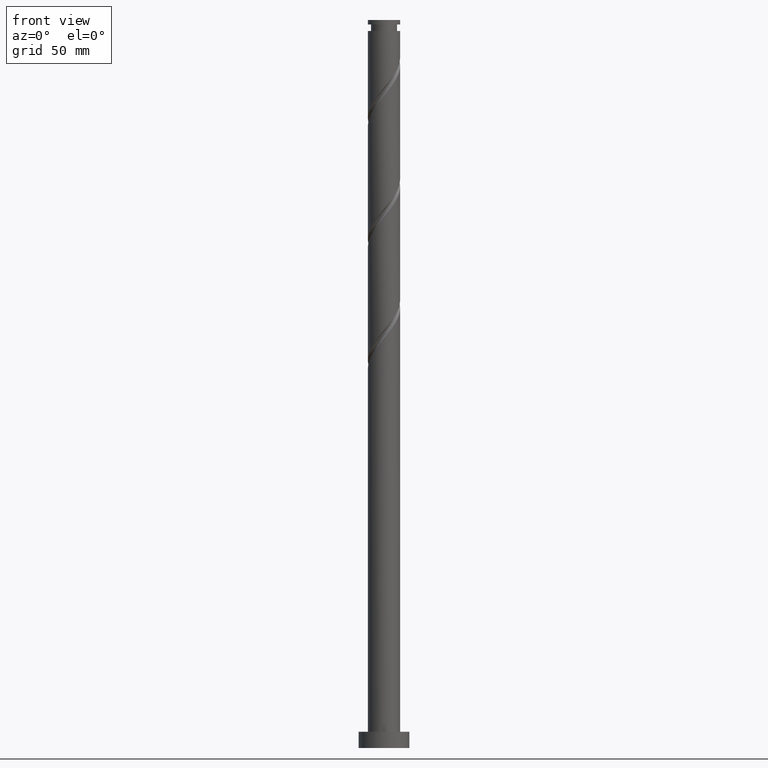
[diagram: clean part render]
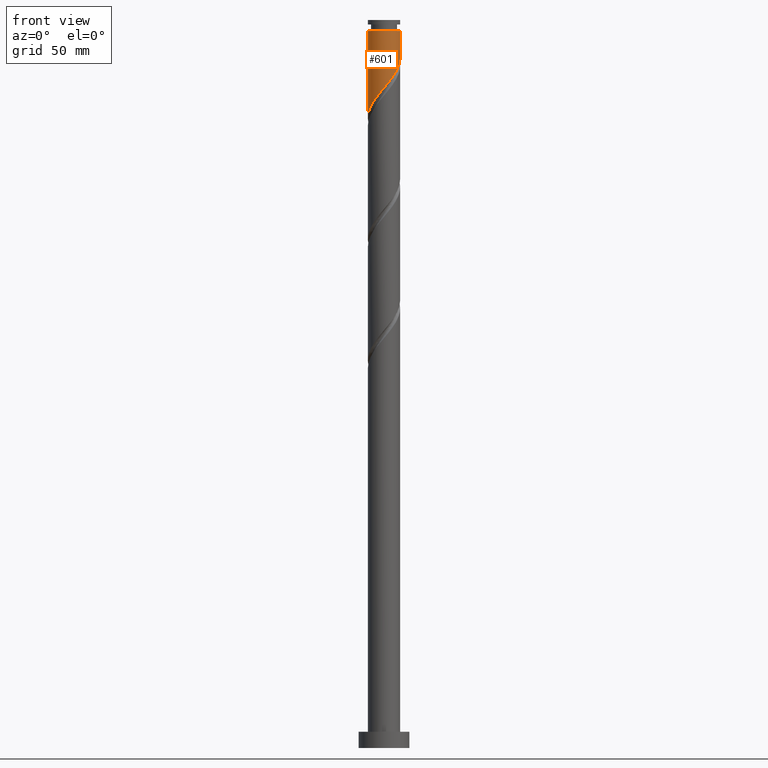
[diagram: same view with one face highlighted and labeled with its STEP entity id]
A machine part, front view. The second image highlights one B-rep face of the part: STEP entity #601.
In plain terms, the highlighted cylindrical surface (edge-blend (fillet) strip) has radius 7 mm, axis along (-0, -0, -1).
Its self-contained STEP definition (entity closure, byte-faithful):
#3 = EDGE_LOOP ( 'NONE', ( #542, #387, #1579, #117 ) ) ;
#14 = CARTESIAN_POINT ( 'NONE',  ( 6.053026884134745877, -3.603183303392007542, 294.3206206460753265 ) ) ;
#16 = EDGE_CURVE ( 'NONE', #1481, #1125, #184, .T. ) ;
#24 = CARTESIAN_POINT ( 'NONE',  ( 3.188062536564719274, -6.231874297749634195, 289.6331206460753265 ) ) ;
#39 = CARTESIAN_POINT ( 'NONE',  ( -4.231476237048364730, -5.576254016389047941, 280.2581206460753833 ) ) ;
#47 = CARTESIAN_POINT ( 'NONE',  ( -1.392982411949271082, -6.859999999999998543, 284.0081206460752696 ) ) ;
#56 = EDGE_CURVE ( 'NONE', #1481, #871, #1624, .T. ) ;
#60 = VECTOR ( 'NONE', #1266, 1000.000000000000000 ) ;
#73 = CARTESIAN_POINT ( 'NONE',  ( 6.999999999999975131, 8.572527594031457413E-16, 310.2581206460753833 ) ) ;
#117 = ORIENTED_EDGE ( 'NONE', *, *, #215, .F. ) ;
#162 = CARTESIAN_POINT ( 'NONE',  ( 7.000000000000000000, 8.572527594031473190E-16, 315.0000000000000000 ) ) ;
#179 = CARTESIAN_POINT ( 'NONE',  ( -2.884551041528020665, -6.378037730275637252, 282.1331206460753833 ) ) ;
#184 = CIRCLE ( 'NONE', #309, 6.999999999999975131 ) ;
#195 = CARTESIAN_POINT ( 'NONE',  ( -6.591082676329786949, -2.485898938349329068, 275.5706206460753833 ) ) ;
#215 = EDGE_CURVE ( 'NONE', #871, #911, #1399, .T. ) ;
#266 = CARTESIAN_POINT ( 'NONE',  ( 5.576254016389047941, -4.231476237048364730, 293.3831206460753833 ) ) ;
#307 = CARTESIAN_POINT ( 'NONE',  ( 6.859999999999998543, -1.392982411949271748, 297.1331206460753265 ) ) ;
#309 = AXIS2_PLACEMENT_3D ( 'NONE', #1180, #881, #750 ) ;
#318 = CARTESIAN_POINT ( 'NONE',  ( 2.485898938349329068, -6.591082676329786949, 288.6956206460753833 ) ) ;
#347 = CARTESIAN_POINT ( 'NONE',  ( 1.721408663644531600, -6.785038851232138235, 287.7581206460753265 ) ) ;
#357 = CARTESIAN_POINT ( 'NONE',  ( 0.1684361723526125176, -6.997973224858978547, 285.8831206460753833 ) ) ;
#387 = ORIENTED_EDGE ( 'NONE', *, *, #16, .T. ) ;
#465 = AXIS2_PLACEMENT_3D ( 'NONE', #782, #1778, #1200 ) ;
#493 = CARTESIAN_POINT ( 'NONE',  ( 6.999999999999998224, -2.029905198927580243E-15, 298.8076377239814292 ) ) ;
#497 = VECTOR ( 'NONE', #1324, 1000.000000000000000 ) ;
#542 = ORIENTED_EDGE ( 'NONE', *, *, #56, .F. ) ;
#584 = CARTESIAN_POINT ( 'NONE',  ( 6.999999999999998224, -2.029905198927580243E-15, 298.8076377239814292 ) ) ;
#601 = ADVANCED_FACE ( 'NONE', ( #751 ), #1059, .T. ) ;
#620 = CARTESIAN_POINT ( 'NONE',  ( 0.9569183889397339104, -6.978995026134489521, 286.8206206460754402 ) ) ;
#734 = LINE ( 'NONE', #996, #60 ) ;
#750 = DIRECTION ( 'NONE',  ( -1.000000000000000000, 0.000000000000000000, 0.000000000000000000 ) ) ;
#751 = FACE_OUTER_BOUND ( 'NONE', #3, .T. ) ;
#781 = CARTESIAN_POINT ( 'NONE',  ( -3.603183303392007542, -6.053026884134746766, 281.1956206460753265 ) ) ;
#782 = CARTESIAN_POINT ( 'NONE',  ( 0.000000000000000000, 0.000000000000000000, 315.0000000000000000 ) ) ;
#800 = CARTESIAN_POINT ( 'NONE',  ( -6.999999999999997335, -0.08423028016471181822, 272.6580004122064906 ) ) ;
#809 = CARTESIAN_POINT ( 'NONE',  ( -4.859769170704720587, -5.099481148643350004, 279.3206206460752128 ) ) ;
#871 = VERTEX_POINT ( 'NONE', #493 ) ;
#881 = DIRECTION ( 'NONE',  ( -0.000000000000000000, -0.000000000000000000, -1.000000000000000000 ) ) ;
#905 = CARTESIAN_POINT ( 'NONE',  ( 6.703048576416525961, -2.165918779664033789, 296.1956206460753265 ) ) ;
#911 = VERTEX_POINT ( 'NONE', #1223 ) ;
#913 = CARTESIAN_POINT ( 'NONE',  ( -6.785038851232138235, -1.721408663644532044, 274.6331206460754402 ) ) ;
#922 = CARTESIAN_POINT ( 'NONE',  ( 3.890226134780111700, -5.872665919169481441, 290.5706206460753265 ) ) ;
#934 = CARTESIAN_POINT ( 'NONE',  ( 4.494853641711729964, -5.366217544937102346, 291.5081206460753833 ) ) ;
#954 = CARTESIAN_POINT ( 'NONE',  ( -6.231874297749634195, -3.188062536564720162, 276.5081206460753265 ) ) ;
#996 = CARTESIAN_POINT ( 'NONE',  ( -7.000000000000000000, 0.000000000000000000, 315.0000000000000000 ) ) ;
#1059 = CYLINDRICAL_SURFACE ( 'NONE', #465, 7.000000000000000000 ) ;
#1077 = CARTESIAN_POINT ( 'NONE',  ( -6.997973224858978547, -0.1684361723526127674, 272.7581206460753833 ) ) ;
#1125 = VERTEX_POINT ( 'NONE', #1803 ) ;
#1180 = CARTESIAN_POINT ( 'NONE',  ( 0.000000000000000000, 0.000000000000000000, 310.2581206460753833 ) ) ;
#1200 = DIRECTION ( 'NONE',  ( -1.000000000000000000, 0.000000000000000000, 0.000000000000000000 ) ) ;
#1221 = CARTESIAN_POINT ( 'NONE',  ( -0.6200460442345099299, -7.016951423583470238, 284.9456206460753265 ) ) ;
#1223 = CARTESIAN_POINT ( 'NONE',  ( -6.999999999999998224, 1.373171163980421906E-15, 272.5576377239813723 ) ) ;
#1266 = DIRECTION ( 'NONE',  ( -0.000000000000000000, -0.000000000000000000, -1.000000000000000000 ) ) ;
#1324 = DIRECTION ( 'NONE',  ( -0.000000000000000000, -0.000000000000000000, -1.000000000000000000 ) ) ;
#1391 = CARTESIAN_POINT ( 'NONE',  ( -6.999999999999998224, 1.373171163980421709E-15, 272.5576377239813723 ) ) ;
#1399 =( BOUNDED_CURVE ( )  B_SPLINE_CURVE ( 2, ( #584, #1921, #307, #905, #1767, #14, #266, #1657, #934, #922, #24, #318, #347, #620, #357, #1221, #47, #1513, #179, #781, #39, #809, #1676, #1402, #954, #195, #913, #1819, #1077, #800, #1391 ),
 .UNSPECIFIED., .F., .T. ) 
 B_SPLINE_CURVE_WITH_KNOTS ( ( 3, 2, 2, 2, 2, 2, 2, 2, 2, 2, 2, 2, 2, 2, 2, 3 ),
 ( 0.3045303401299220281, 0.3125000000000000000, 0.3214285714285714524, 0.3303571428571428492, 0.3392857142857143016, 0.3482142857142856984, 0.3571428571428571508, 0.3660714285714285476, 0.3750000000000000000, 0.3839285714285714524, 0.3928571428571428492, 0.4017857142857143016, 0.4107142857142856984, 0.4196428571428571508, 0.4285714285714285476, 0.4295303401299222501 ),
 .UNSPECIFIED. ) 
 CURVE ( )  GEOMETRIC_REPRESENTATION_ITEM ( )  RATIONAL_B_SPLINE_CURVE ( ( 0.9079949616361933096, 0.9039886423360564693, 0.9090909090909231605, 0.9033747362665981440, 0.9090909090909231605, 0.9033747362665981440, 0.9090909090909231605, 0.9033747362665981440, 0.9090909090909231605, 0.9033747362665981440, 0.9090909090909231605, 0.9033747362665981440, 0.9090909090909231605, 0.9033747362665981440, 0.9090909090909231605, 0.9033747362665981440, 0.9090909090909231605, 0.9033747362665981440, 0.9090909090909231605, 0.9033747362665981440, 0.9090909090909231605, 0.9033747362665981440, 0.9090909090909231605, 0.9033747362665981440, 0.9090909090909231605, 0.9033747362665981440, 0.9090909090909231605, 0.9033747362665981440, 0.9090909090909231605, 0.9084770030214648351, 0.9079949616361930875 ) ) 
 REPRESENTATION_ITEM ( '' )  );
#1402 = CARTESIAN_POINT ( 'NONE',  ( -5.872665919169481441, -3.890226134780111700, 277.4456206460753833 ) ) ;
#1465 = EDGE_CURVE ( 'NONE', #1125, #911, #734, .T. ) ;
#1481 = VERTEX_POINT ( 'NONE', #73 ) ;
#1513 = CARTESIAN_POINT ( 'NONE',  ( -2.165918779664033789, -6.703048576416525961, 283.0706206460753265 ) ) ;
#1579 = ORIENTED_EDGE ( 'NONE', *, *, #1465, .T. ) ;
#1624 = LINE ( 'NONE', #162, #497 ) ;
#1657 = CARTESIAN_POINT ( 'NONE',  ( 5.099481148643350004, -4.859769170704720587, 292.4456206460753833 ) ) ;
#1676 = CARTESIAN_POINT ( 'NONE',  ( -5.366217544937102346, -4.494853641711729964, 278.3831206460754402 ) ) ;
#1767 = CARTESIAN_POINT ( 'NONE',  ( 6.378037730275637252, -2.884551041528021109, 295.2581206460753833 ) ) ;
#1778 = DIRECTION ( 'NONE',  ( -0.000000000000000000, -0.000000000000000000, -1.000000000000000000 ) ) ;
#1803 = CARTESIAN_POINT ( 'NONE',  ( -6.999999999999975131, 0.000000000000000000, 310.2581206460753833 ) ) ;
#1819 = CARTESIAN_POINT ( 'NONE',  ( -6.978995026134489521, -0.9569183889397343545, 273.6956206460753833 ) ) ;
#1921 = CARTESIAN_POINT ( 'NONE',  ( 6.999999999999998224, -0.7035264706814512436, 297.9693666450178284 ) ) ;